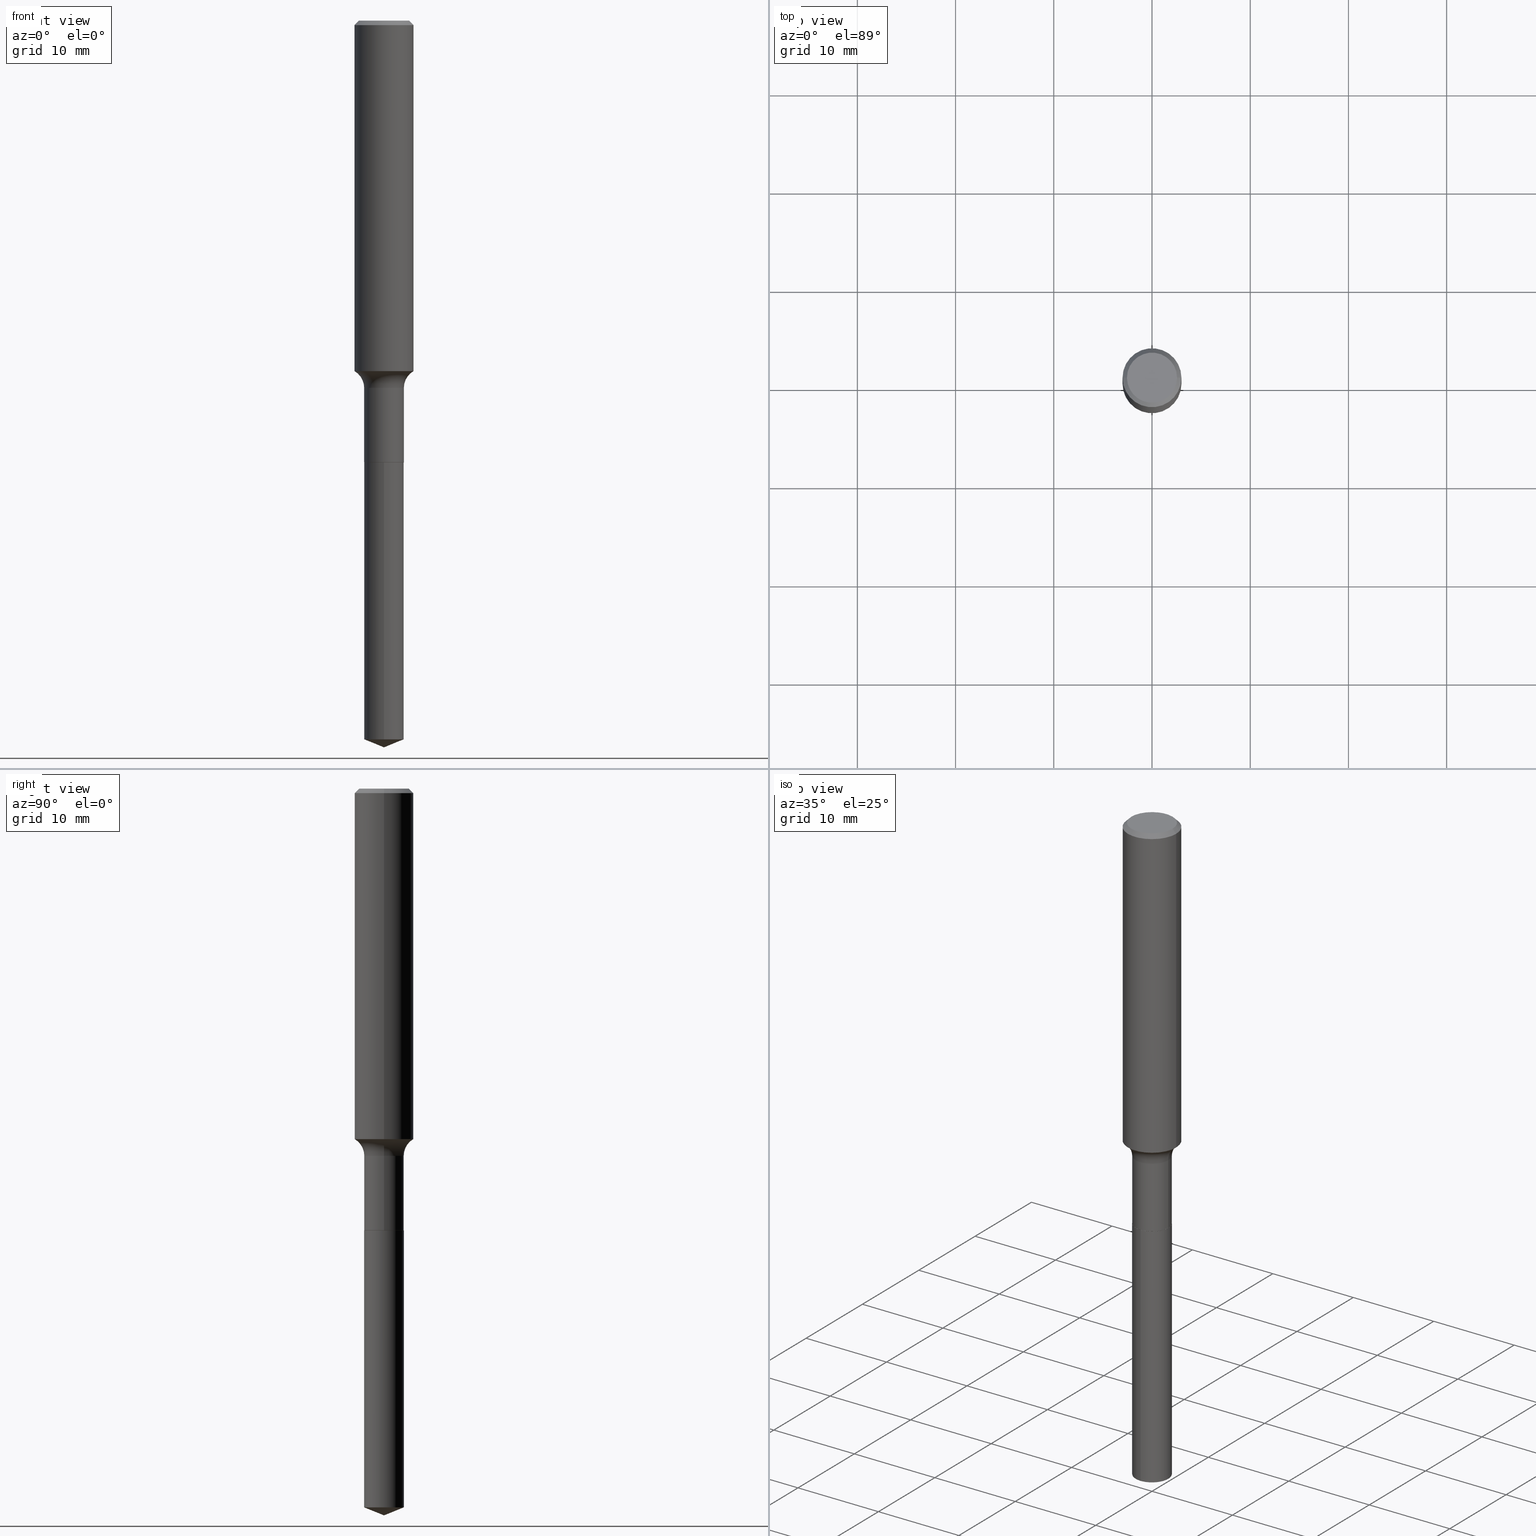
[diagram: canonical four-view strip — front | top / right | iso, engineering-drawing reading convention]
A machine part, canonical four-view strip (front | top / right | iso — engineering-drawing reading convention). The complete STEP part file that produces these views, byte-faithful:
ISO-10303-21;
HEADER;
FILE_DESCRIPTION (( 'STEP AP203' ),
    '1' );
FILE_NAME ('56840.STEP',
    '2024-04-19T14:19:43',
    ( '' ),
    ( '' ),
    'SwSTEP 2.0',
    'SolidWorks 2023',
    '' );
FILE_SCHEMA (( 'CONFIG_CONTROL_DESIGN' ));
ENDSEC;

DATA;
#1 = VERTEX_POINT ( 'NONE', #273 ) ;
#2 = VECTOR ( 'NONE', #130, 39.37007874015748143 ) ;
#3 = DIRECTION ( 'NONE',  ( -2.445468806185136597E-29, 3.491481338843145583E-15, 1.000000000000000000 ) ) ;
#4 = CC_DESIGN_PERSON_AND_ORGANIZATION_ASSIGNMENT ( #92, #423, ( #24 ) ) ;
#5 = PERSON ( 'UNSPECIFIED', 'UNSPECIFIED', 'UNSPECIFIED', ('UNSPECIFIED'), ('UNSPECIFIED'), ('UNSPECIFIED') ) ;
#6 = CALENDAR_DATE ( 2024, 19, 4 ) ;
#7 = AXIS2_PLACEMENT_3D ( 'NONE', #401, #66, #224 ) ;
#8 = AXIS2_PLACEMENT_3D ( 'NONE', #276, #135, #398 ) ;
#9 = LOCAL_TIME ( 10, 19, 43.00000000000000000, #45 ) ;
#10 = MANIFOLD_SOLID_BREP ( 'Body-Move/Copy2[2]', #251 ) ;
#11 = EDGE_CURVE ( 'NONE', #409, #300, #159, .T. ) ;
#12 = DIRECTION ( 'NONE',  ( -1.000000000000000000, 7.105427357601001859E-15, 0.000000000000000000 ) ) ;
#13 = FACE_OUTER_BOUND ( 'NONE', #17, .T. ) ;
#14 = EDGE_CURVE ( 'NONE', #282, #410, #308, .T. ) ;
#15 = AXIS2_PLACEMENT_3D ( 'NONE', #32, #470, #295 ) ;
#16 = DIRECTION ( 'NONE',  ( 1.000000000000000000, -6.982962677686265922E-15, 4.876176775795935793E-29 ) ) ;
#17 = EDGE_LOOP ( 'NONE', ( #259, #237 ) ) ;
#18 = PRODUCT_RELATED_PRODUCT_CATEGORY ( 'detail', '', ( #247 ) ) ;
#19 = CARTESIAN_POINT ( 'NONE',  ( -0.1574999999999999456, -4.020704870088835941E-15, -1.472099999999999520 ) ) ;
#20 = FACE_OUTER_BOUND ( 'NONE', #200, .T. ) ;
#21 = DIRECTION ( 'NONE',  ( -6.982962677686265922E-15, -1.000000000000000000, 6.872573568966700010E-15 ) ) ;
#22 = CARTESIAN_POINT ( 'NONE',  ( 4.331658896395732410E-29, -6.184460895492863090E-15, -1.771299999999999653 ) ) ;
#23 = VECTOR ( 'NONE', #367, 39.37007874015748143 ) ;
#24 = PRODUCT_DEFINITION_FORMATION_WITH_SPECIFIED_SOURCE ( 'ANY', '', #247, .NOT_KNOWN. ) ;
#25 = DIRECTION ( 'NONE',  ( 1.000000000000000000, -6.982962677686261977E-15, 0.000000000000000000 ) ) ;
#26 = APPROVAL_STATUS ( 'not_yet_approved' ) ;
#27 = FACE_OUTER_BOUND ( 'NONE', #489, .T. ) ;
#28 = CARTESIAN_POINT ( 'NONE',  ( 0.1180999999999999966, -8.865394841523548556E-16, -0.01771500000000011607 ) ) ;
#29 = CC_DESIGN_PERSON_AND_ORGANIZATION_ASSIGNMENT ( #72, #305, ( #247 ) ) ;
#30 = FACE_OUTER_BOUND ( 'NONE', #306, .T. ) ;
#31 = CARTESIAN_POINT ( 'NONE',  ( -0.07900000000000000078, -5.620482907068273032E-15, -1.771299999999999653 ) ) ;
#32 = CARTESIAN_POINT ( 'NONE',  ( 4.332147990156998495E-31, -6.185159191760672860E-17, -0.01771500000000011607 ) ) ;
#33 =( NAMED_UNIT ( * ) SI_UNIT ( $, .STERADIAN. ) SOLID_ANGLE_UNIT ( ) );
#34 = ORIENTED_EDGE ( 'NONE', *, *, #78, .T. ) ;
#35 = EDGE_CURVE ( 'NONE', #56, #137, #236, .T. ) ;
#36 = CIRCLE ( 'NONE', #7, 0.1181000000000001632 ) ;
#37 = DIRECTION ( 'NONE',  ( 1.000000000000000000, -6.982962677686266711E-15, 4.875668750515085695E-29 ) ) ;
#38 = ORIENTED_EDGE ( 'NONE', *, *, #323, .T. ) ;
#39 = EDGE_CURVE ( 'NONE', #377, #311, #160, .T. ) ;
#40 = DIRECTION ( 'NONE',  ( -6.982962677686265922E-15, -1.000000000000000000, 3.436286784483350005E-15 ) ) ;
#41 = ORIENTED_EDGE ( 'NONE', *, *, #441, .F. ) ;
#42 = VERTEX_POINT ( 'NONE', #488 ) ;
#43 = ORIENTED_EDGE ( 'NONE', *, *, #177, .T. ) ;
#44 = DIRECTION ( 'NONE',  ( 1.000000000000000000, -6.982962677686271444E-15, 0.000000000000000000 ) ) ;
#45 = COORDINATED_UNIVERSAL_TIME_OFFSET ( 5, 0, .BEHIND. ) ;
#46 = ADVANCED_FACE ( 'NONE', ( #30 ), #438, .T. ) ;
#47 = ADVANCED_FACE ( 'NONE', ( #339 ), #149, .F. ) ;
#48 = AXIS2_PLACEMENT_3D ( 'NONE', #326, #99, #257 ) ;
#49 = EDGE_CURVE ( 'NONE', #194, #418, #473, .T. ) ;
#50 = DIRECTION ( 'NONE',  ( 1.000000000000000000, -6.982962677686267499E-15, 4.883557194083112901E-29 ) ) ;
#51 = CARTESIAN_POINT ( 'NONE',  ( 5.648814749293502595E-16, 0.07949999999999381173, -1.771300000000000097 ) ) ;
#52 = APPROVAL ( #461, 'UNSPECIFIED' ) ;
#53 = CARTESIAN_POINT ( 'NONE',  ( -5.551455328760147649E-16, -0.07950000000000617684, -1.771299999999999430 ) ) ;
#54 = CIRCLE ( 'NONE', #124, 0.07799999999999995826 ) ;
#55 = AXIS2_PLACEMENT_3D ( 'NONE', #193, #331, #185 ) ;
#56 = VERTEX_POINT ( 'NONE', #296 ) ;
#57 = DIRECTION ( 'NONE',  ( -2.445468806185136597E-29, 3.491481338843145583E-15, 1.000000000000000000 ) ) ;
#58 = CARTESIAN_POINT ( 'NONE',  ( 0.1180999999999999966, -8.720764054544246253E-16, -0.01771500000000011607 ) ) ;
#59 = ORIENTED_EDGE ( 'NONE', *, *, #129, .F. ) ;
#60 = ORIENTED_EDGE ( 'NONE', *, *, #278, .T. ) ;
#61 = CARTESIAN_POINT ( 'NONE',  ( 0.07950000000000000122, -6.737860687699500231E-15, -1.770799999999999930 ) ) ;
#62 = DIRECTION ( 'NONE',  ( -2.445468806185136597E-29, 3.491481338843145583E-15, 1.000000000000000000 ) ) ;
#63 = EDGE_LOOP ( 'NONE', ( #468, #454, #365, #387 ) ) ;
#64 = DIRECTION ( 'NONE',  ( -6.982962677686266711E-15, -1.000000000000000000, 3.491481338843145583E-15 ) ) ;
#65 = DATE_AND_TIME ( #456, #274 ) ;
#66 = DIRECTION ( 'NONE',  ( -2.445468806185136597E-29, 3.491481338843145583E-15, 1.000000000000000000 ) ) ;
#67 = PRODUCT_DEFINITION ( 'UNKNOWN', '', #24, #279 ) ;
#68 = DIRECTION ( 'NONE',  ( 2.445355828329575530E-29, -3.491643129562608875E-15, -1.000000000000000000 ) ) ;
#69 = ORIENTED_EDGE ( 'NONE', *, *, #11, .F. ) ;
#70 = CARTESIAN_POINT ( 'NONE',  ( 0.07900000000000000078, -6.736114947030078728E-15, -1.771299999999999653 ) ) ;
#71 = CARTESIAN_POINT ( 'NONE',  ( -0.1181000000000000799, 8.391509709326788873E-16, -5.809262341591047988E-30 ) ) ;
#72 = PERSON_AND_ORGANIZATION ( #5, #349 ) ;
#73 = ADVANCED_FACE ( 'NONE', ( #13 ), #217, .F. ) ;
#74 = EDGE_LOOP ( 'NONE', ( #316, #83, #458, #176 ) ) ;
#75 = ORIENTED_EDGE ( 'NONE', *, *, #421, .T. ) ;
#76 = DIRECTION ( 'NONE',  ( 1.000000000000000000, 0.000000000000000000, 0.000000000000000000 ) ) ;
#77 = DIRECTION ( 'NONE',  ( 6.588037525764813379E-15, 0.9271838545667921982, 0.3746065934158998578 ) ) ;
#78 = EDGE_CURVE ( 'NONE', #377, #1, #262, .T. ) ;
#79 = ORIENTED_EDGE ( 'NONE', *, *, #319, .F. ) ;
#80 = EDGE_LOOP ( 'NONE', ( #464, #131, #485, #303 ) ) ;
#81 = VECTOR ( 'NONE', #318, 39.37007874015748143 ) ;
#82 = APPROVAL_DATE_TIME ( #107, #471 ) ;
#83 = ORIENTED_EDGE ( 'NONE', *, *, #490, .T. ) ;
#84 = DIRECTION ( 'NONE',  ( 2.445468806185136597E-29, -3.491481338843145583E-15, -1.000000000000000000 ) ) ;
#85 = VERTEX_POINT ( 'NONE', #96 ) ;
#86 = APPROVAL_ROLE ( '' ) ;
#87 = EDGE_CURVE ( 'NONE', #311, #300, #476, .T. ) ;
#88 = CALENDAR_DATE ( 2024, 19, 4 ) ;
#89 = AXIS2_PLACEMENT_3D ( 'NONE', #106, #188, #175 ) ;
#90 = AXIS2_PLACEMENT_3D ( 'NONE', #178, #329, #297 ) ;
#91 = ADVANCED_FACE ( 'NONE', ( #140 ), #364, .T. ) ;
#92 = PERSON_AND_ORGANIZATION ( #5, #349 ) ;
#93 = AXIS2_PLACEMENT_3D ( 'NONE', #451, #116, #170 ) ;
#94 = CONICAL_SURFACE ( 'NONE', #133, 0.1180999999999999966, 0.7853981633974453924 ) ;
#95 = EDGE_CURVE ( 'NONE', #311, #377, #370, .T. ) ;
#96 = CARTESIAN_POINT ( 'NONE',  ( -0.1181000000000001354, -4.065621063523920344E-15, -1.404782543125872252 ) ) ;
#97 = DIRECTION ( 'NONE',  ( -2.445355828329575810E-29, 3.491643129562608875E-15, 1.000000000000000000 ) ) ;
#98 = CC_DESIGN_PERSON_AND_ORGANIZATION_ASSIGNMENT ( #245, #205, ( #24 ) ) ;
#99 = DIRECTION ( 'NONE',  ( -2.445468806185136597E-29, 3.491481338843145583E-15, 1.000000000000000000 ) ) ;
#100 = ORIENTED_EDGE ( 'NONE', *, *, #164, .F. ) ;
#101 = CARTESIAN_POINT ( 'NONE',  ( -5.551455328760147649E-16, -0.07950000000000617684, -1.771299999999999430 ) ) ;
#102 = CARTESIAN_POINT ( 'NONE',  ( 7.044976608651161827E-29, -1.005871798256426244E-14, -2.880879915046105744 ) ) ;
#103 = ORIENTED_EDGE ( 'NONE', *, *, #11, .T. ) ;
#104 = CC_DESIGN_APPROVAL ( #368, ( #24 ) ) ;
#105 = DIRECTION ( 'NONE',  ( -2.445355828329575810E-29, 3.491643129562608875E-15, 1.000000000000000000 ) ) ;
#106 = CARTESIAN_POINT ( 'NONE',  ( 4.331658896395732410E-29, -6.184460895492863090E-15, -1.771299999999999653 ) ) ;
#107 = DATE_AND_TIME ( #376, #406 ) ;
#108 = DIRECTION ( 'NONE',  ( 1.000000000000000000, -6.982962677686267499E-15, 4.883557194083112901E-29 ) ) ;
#109 = CARTESIAN_POINT ( 'NONE',  ( -0.1003850000000000159, 7.319105043583384717E-16, -2.868857591683090262E-17 ) ) ;
#110 = ORIENTED_EDGE ( 'NONE', *, *, #177, .F. ) ;
#111 = DIRECTION ( 'NONE',  ( 1.000000000000000000, -6.982962677686269866E-15, 0.000000000000000000 ) ) ;
#112 = AXIS2_PLACEMENT_3D ( 'NONE', #136, #340, #50 ) ;
#113 = AXIS2_PLACEMENT_3D ( 'NONE', #482, #3, #400 ) ;
#114 = FACE_OUTER_BOUND ( 'NONE', #74, .T. ) ;
#115 = APPROVAL_STATUS ( 'not_yet_approved' ) ;
#116 = DIRECTION ( 'NONE',  ( 2.438088387897960049E-29, -3.491481338843145188E-15, -1.000000000000000000 ) ) ;
#117 = ORIENTED_EDGE ( 'NONE', *, *, #323, .F. ) ;
#118 = DIRECTION ( 'NONE',  ( 1.000000000000000000, -6.982962677686266711E-15, 4.876176775795936353E-29 ) ) ;
#119 = ORIENTED_EDGE ( 'NONE', *, *, #95, .T. ) ;
#120 = CC_DESIGN_DATE_AND_TIME_ASSIGNMENT ( #384, #166, ( #381 ) ) ;
#121 = ORIENTED_EDGE ( 'NONE', *, *, #39, .T. ) ;
#122 =( NAMED_UNIT ( * ) PLANE_ANGLE_UNIT ( ) SI_UNIT ( $, .RADIAN. ) );
#123 = ORIENTED_EDGE ( 'NONE', *, *, #490, .F. ) ;
#124 = AXIS2_PLACEMENT_3D ( 'NONE', #402, #64, #25 ) ;
#125 = EDGE_LOOP ( 'NONE', ( #189, #150, #218 ) ) ;
#126 = DIRECTION ( 'NONE',  ( 2.445468806185136597E-29, -3.491481338843145583E-15, -1.000000000000000000 ) ) ;
#127 = AXIS2_PLACEMENT_3D ( 'NONE', #399, #330, #443 ) ;
#128 = PRODUCT_DEFINITION_SHAPE ( 'NONE', 'NONE',  #67 ) ;
#129 = EDGE_CURVE ( 'NONE', #56, #42, #266, .T. ) ;
#130 = DIRECTION ( 'NONE',  ( -2.445468806185136877E-29, 3.491481338843145188E-15, 1.000000000000000000 ) ) ;
#131 = ORIENTED_EDGE ( 'NONE', *, *, #138, .T. ) ;
#132 = TOROIDAL_SURFACE ( 'NONE', #310, 0.1574999999999999456, 0.07799999999999995826 ) ;
#133 = AXIS2_PLACEMENT_3D ( 'NONE', #455, #84, #419 ) ;
#134 = CARTESIAN_POINT ( 'NONE',  ( -0.1180999999999999966, 7.628363003171412752E-16, -0.01771500000000011607 ) ) ;
#135 = DIRECTION ( 'NONE',  ( -2.445468806185136597E-29, 3.491481338843145583E-15, 1.000000000000000000 ) ) ;
#136 = CARTESIAN_POINT ( 'NONE',  ( 3.599974629585139129E-29, -5.139809678910993544E-15, -1.472099999999999520 ) ) ;
#137 = VERTEX_POINT ( 'NONE', #302 ) ;
#138 = EDGE_CURVE ( 'NONE', #137, #42, #439, .T. ) ;
#139 = DIRECTION ( 'NONE',  ( -2.445355828329575810E-29, 3.491643129562608875E-15, 1.000000000000000000 ) ) ;
#140 = FACE_OUTER_BOUND ( 'NONE', #313, .T. ) ;
#141 = VECTOR ( 'NONE', #229, 39.37007874015748143 ) ;
#142 = CARTESIAN_POINT ( 'NONE',  ( 0.07900000000000000078, -6.736114947030078728E-15, -1.771299999999999653 ) ) ;
#143 = DIRECTION ( 'NONE',  ( -6.474490251793201506E-15, -0.9271838545667896447, 0.3746065934159063526 ) ) ;
#144 = DIRECTION ( 'NONE',  ( 6.982962677686265922E-15, 1.000000000000000000, -3.491643129562608875E-15 ) ) ;
#145 = DATE_AND_TIME ( #478, #206 ) ;
#146 = CYLINDRICAL_SURFACE ( 'NONE', #415, 0.1181000000000000799 ) ;
#147 = CARTESIAN_POINT ( 'NONE',  ( 3.599974629585139129E-29, -5.139809678910993544E-15, -1.472099999999999520 ) ) ;
#148 = FACE_OUTER_BOUND ( 'NONE', #63, .T. ) ;
#149 = PLANE ( 'NONE',  #93 ) ;
#150 = ORIENTED_EDGE ( 'NONE', *, *, #129, .T. ) ;
#151 = CARTESIAN_POINT ( 'NONE',  ( 0.000000000000000000, 0.000000000000000000, 0.000000000000000000 ) ) ;
#152 = EDGE_LOOP ( 'NONE', ( #214, #378, #346, #492 ) ) ;
#153 = VECTOR ( 'NONE', #171, 39.37007874015748143 ) ;
#154 = CONICAL_SURFACE ( 'NONE', #321, 0.1180999999999999966, 0.7853981633974453924 ) ;
#155 = APPROVAL_ROLE ( '' ) ;
#156 = VERTEX_POINT ( 'NONE', #336 ) ;
#157 = DIRECTION ( 'NONE',  ( 1.000000000000000000, -6.982962677686271444E-15, 0.000000000000000000 ) ) ;
#158 = ORIENTED_EDGE ( 'NONE', *, *, #416, .F. ) ;
#159 = LINE ( 'NONE', #413, #81 ) ;
#160 = CIRCLE ( 'NONE', #356, 0.1003850000000000159 ) ;
#161 = ADVANCED_FACE ( 'NONE', ( #472 ), #132, .F. ) ;
#162 = SECURITY_CLASSIFICATION_LEVEL ( 'unclassified' ) ;
#163 = LINE ( 'NONE', #204, #2 ) ;
#164 = EDGE_CURVE ( 'NONE', #42, #137, #292, .T. ) ;
#165 = ADVANCED_FACE ( 'NONE', ( #221 ), #270, .T. ) ;
#166 = DATE_TIME_ROLE ( 'classification_date' ) ;
#167 = AXIS2_PLACEMENT_3D ( 'NONE', #338, #68, #144 ) ;
#168 = VECTOR ( 'NONE', #105, 39.37007874015748143 ) ;
#169 = ORIENTED_EDGE ( 'NONE', *, *, #353, .T. ) ;
#170 = DIRECTION ( 'NONE',  ( -1.000000000000000000, 6.982962677686265922E-15, -4.876176775795935793E-29 ) ) ;
#171 = DIRECTION ( 'NONE',  ( -2.445468806185136877E-29, 3.491481338843145188E-15, 1.000000000000000000 ) ) ;
#172 = VECTOR ( 'NONE', #230, 39.37007874015748143 ) ;
#173 = ORIENTED_EDGE ( 'NONE', *, *, #281, .F. ) ;
#174 = CONICAL_SURFACE ( 'NONE', #361, 97.44436430773087920, 1.186823891356153737 ) ;
#175 = DIRECTION ( 'NONE',  ( -6.982962677686265922E-15, -1.000000000000000000, 3.436286784483350005E-15 ) ) ;
#176 = ORIENTED_EDGE ( 'NONE', *, *, #421, .F. ) ;
#177 = EDGE_CURVE ( 'NONE', #409, #85, #36, .T. ) ;
#178 = CARTESIAN_POINT ( 'NONE',  ( -8.915032986343881601E-28, 1.272953950868953134E-13, 36.45707874015747763 ) ) ;
#179 = DIRECTION ( 'NONE',  ( -2.445468806185136597E-29, 3.491481338843145583E-15, 1.000000000000000000 ) ) ;
#180 = CC_DESIGN_DATE_AND_TIME_ASSIGNMENT ( #65, #223, ( #67 ) ) ;
#181 = MANIFOLD_SOLID_BREP ( 'Body-Move/Copy2[1]', #298 ) ;
#182 = CARTESIAN_POINT ( 'NONE',  ( 5.648814749293228466E-16, 0.07949999999999381173, -1.771300000000000097 ) ) ;
#183 = DIRECTION ( 'NONE',  ( -2.438088387897960049E-29, 3.491481338843145188E-15, 1.000000000000000000 ) ) ;
#184 = ORIENTED_EDGE ( 'NONE', *, *, #441, .T. ) ;
#185 = DIRECTION ( 'NONE',  ( 1.000000000000000000, -6.982962677686267499E-15, 4.876176775795935793E-29 ) ) ;
#186 = PERSON_AND_ORGANIZATION_ROLE ( 'creator' ) ;
#187 = ADVANCED_FACE ( 'NONE', ( #27 ), #146, .T. ) ;
#188 = DIRECTION ( 'NONE',  ( -2.445355828329575810E-29, 3.491643129562608875E-15, 1.000000000000000000 ) ) ;
#189 = ORIENTED_EDGE ( 'NONE', *, *, #35, .F. ) ;
#190 = LINE ( 'NONE', #71, #344 ) ;
#191 = CARTESIAN_POINT ( 'NONE',  ( 4.331658896395732410E-29, -6.184460895492863090E-15, -1.771299999999999653 ) ) ;
#192 = FACE_OUTER_BOUND ( 'NONE', #219, .T. ) ;
#193 = CARTESIAN_POINT ( 'NONE',  ( 0.000000000000000000, 0.000000000000000000, 0.000000000000000000 ) ) ;
#194 = VERTEX_POINT ( 'NONE', #51 ) ;
#195 = APPROVAL_PERSON_ORGANIZATION ( #445, #471, #232 ) ;
#196 = DIRECTION ( 'NONE',  ( -2.445468806185136597E-29, 3.491481338843145583E-15, 1.000000000000000000 ) ) ;
#197 = ORIENTED_EDGE ( 'NONE', *, *, #319, .T. ) ;
#198 = CC_DESIGN_PERSON_AND_ORGANIZATION_ASSIGNMENT ( #354, #317, ( #381 ) ) ;
#199 = PERSON_AND_ORGANIZATION ( #5, #349 ) ;
#200 = EDGE_LOOP ( 'NONE', ( #59, #207, #100 ) ) ;
#201 = FACE_OUTER_BOUND ( 'NONE', #383, .T. ) ;
#202 = CIRCLE ( 'NONE', #15, 0.1180999999999999966 ) ;
#203 = EDGE_CURVE ( 'NONE', #410, #156, #208, .T. ) ;
#204 = CARTESIAN_POINT ( 'NONE',  ( 0.07949999999999998734, -5.551455328760581522E-16, 3.876560536757768171E-30 ) ) ;
#205 = PERSON_AND_ORGANIZATION_ROLE ( 'design_supplier' ) ;
#206 = LOCAL_TIME ( 10, 19, 43.00000000000000000, #335 ) ;
#207 = ORIENTED_EDGE ( 'NONE', *, *, #35, .T. ) ;
#208 = LINE ( 'NONE', #359, #153 ) ;
#209 = DIRECTION ( 'NONE',  ( -6.982962677686265922E-15, -1.000000000000000000, 3.436286784483350005E-15 ) ) ;
#210 = FACE_OUTER_BOUND ( 'NONE', #327, .T. ) ;
#211 =( GEOMETRIC_REPRESENTATION_CONTEXT ( 3 ) GLOBAL_UNCERTAINTY_ASSIGNED_CONTEXT ( ( #453 ) ) GLOBAL_UNIT_ASSIGNED_CONTEXT ( ( #342, #122, #33 ) ) REPRESENTATION_CONTEXT ( 'NONE', 'WORKASPACE' ) );
#212 = ORIENTED_EDGE ( 'NONE', *, *, #291, .T. ) ;
#213 = CARTESIAN_POINT ( 'NONE',  ( 0.07949999999999995959, -5.694955211787051401E-15, -1.472099999999999520 ) ) ;
#214 = ORIENTED_EDGE ( 'NONE', *, *, #95, .F. ) ;
#215 = ADVANCED_BREP_SHAPE_REPRESENTATION ( '56840', ( #181, #10, #466 ), #211 ) ;
#216 = DIRECTION ( 'NONE',  ( -2.445468806185136597E-29, 3.491481338843145583E-15, 1.000000000000000000 ) ) ;
#217 = PLANE ( 'NONE',  #484 ) ;
#218 = ORIENTED_EDGE ( 'NONE', *, *, #138, .F. ) ;
#219 = EDGE_LOOP ( 'NONE', ( #43, #38, #158, #69 ) ) ;
#220 = PLANE ( 'NONE',  #167 ) ;
#221 = FACE_OUTER_BOUND ( 'NONE', #80, .T. ) ;
#222 = CARTESIAN_POINT ( 'NONE',  ( 0.1003850000000000159, -7.803837484803599345E-16, -2.868857591682071522E-17 ) ) ;
#223 = DATE_TIME_ROLE ( 'creation_date' ) ;
#224 = DIRECTION ( 'NONE',  ( 1.000000000000000000, -6.982962677686270655E-15, 0.000000000000000000 ) ) ;
#225 = AXIS2_PLACEMENT_3D ( 'NONE', #151, #309, #118 ) ;
#226 = CC_DESIGN_APPROVAL ( #52, ( #381 ) ) ;
#227 = ORIENTED_EDGE ( 'NONE', *, *, #39, .F. ) ;
#228 = DIRECTION ( 'NONE',  ( 1.000000000000000000, -6.982962677686271444E-15, 0.000000000000000000 ) ) ;
#229 = DIRECTION ( 'NONE',  ( -0.7071067811866199593, 7.493145998870616062E-15, 0.7071067811864750752 ) ) ;
#230 = DIRECTION ( 'NONE',  ( 0.7071067811866199593, -2.468850131083015945E-15, 0.7071067811864750752 ) ) ;
#231 = CYLINDRICAL_SURFACE ( 'NONE', #388, 0.07949999999999998734 ) ;
#232 = APPROVAL_ROLE ( '' ) ;
#233 = CARTESIAN_POINT ( 'NONE',  ( -0.07900000000000000078, -5.623132134242384233E-15, -1.771299999999999653 ) ) ;
#234 = SHAPE_DEFINITION_REPRESENTATION ( #128, #215 ) ;
#235 = CARTESIAN_POINT ( 'NONE',  ( 4.331658896395732410E-29, -6.184460895492863090E-15, -1.771299999999999653 ) ) ;
#236 = LINE ( 'NONE', #379, #404 ) ;
#237 = ORIENTED_EDGE ( 'NONE', *, *, #457, .F. ) ;
#238 = EDGE_CURVE ( 'NONE', #85, #409, #283, .T. ) ;
#239 = AXIS2_PLACEMENT_3D ( 'NONE', #431, #97, #209 ) ;
#240 = APPROVAL_DATE_TIME ( #351, #52 ) ;
#241 = APPROVAL_PERSON_ORGANIZATION ( #199, #52, #86 ) ;
#242 = COORDINATED_UNIVERSAL_TIME_OFFSET ( 5, 0, .BEHIND. ) ;
#243 = ORIENTED_EDGE ( 'NONE', *, *, #457, .T. ) ;
#244 = DIRECTION ( 'NONE',  ( -2.445468806185136597E-29, 3.491481338843145583E-15, 1.000000000000000000 ) ) ;
#245 = PERSON_AND_ORGANIZATION ( #5, #349 ) ;
#246 = ORIENTED_EDGE ( 'NONE', *, *, #14, .F. ) ;
#247 = PRODUCT ( '56840', '56840', '', ( #487 ) ) ;
#248 = DIRECTION ( 'NONE',  ( -1.000000000000000000, 6.982962677686266711E-15, 0.000000000000000000 ) ) ;
#249 = CONICAL_SURFACE ( 'NONE', #8, 0.07900000000000000078, 0.7853981633975507526 ) ;
#250 = EDGE_CURVE ( 'NONE', #42, #418, #392, .T. ) ;
#251 = CLOSED_SHELL ( 'NONE', ( #396, #434, #288, #254, #334, #355, #161, #187, #460, #47, #73, #46 ) ) ;
#252 = AXIS2_PLACEMENT_3D ( 'NONE', #235, #382, #40 ) ;
#253 = ORIENTED_EDGE ( 'NONE', *, *, #49, .T. ) ;
#254 = ADVANCED_FACE ( 'NONE', ( #210 ), #289, .F. ) ;
#255 = DIRECTION ( 'NONE',  ( 1.000000000000000000, -6.982962677686266711E-15, 4.876176775795936353E-29 ) ) ;
#256 = VERTEX_POINT ( 'NONE', #213 ) ;
#257 = DIRECTION ( 'NONE',  ( 1.000000000000000000, -6.982962677686270655E-15, 0.000000000000000000 ) ) ;
#258 = EDGE_LOOP ( 'NONE', ( #184, #253 ) ) ;
#259 = ORIENTED_EDGE ( 'NONE', *, *, #353, .F. ) ;
#260 = CARTESIAN_POINT ( 'NONE',  ( 3.599974629585139129E-29, -5.139809678910993544E-15, -1.472099999999999520 ) ) ;
#261 = EDGE_CURVE ( 'NONE', #85, #156, #320, .T. ) ;
#262 = LINE ( 'NONE', #134, #424 ) ;
#263 = VECTOR ( 'NONE', #143, 39.37007874015748143 ) ;
#264 = CIRCLE ( 'NONE', #252, 0.07950000000000000122 ) ;
#265 = CARTESIAN_POINT ( 'NONE',  ( 0.000000000000000000, 0.000000000000000000, 0.000000000000000000 ) ) ;
#266 = LINE ( 'NONE', #333, #263 ) ;
#267 = APPLICATION_CONTEXT ( 'configuration controlled 3d designs of mechanical parts and assemblies' ) ;
#268 = DIRECTION ( 'NONE',  ( -2.445468806185136877E-29, 3.491481338843145188E-15, 1.000000000000000000 ) ) ;
#269 = APPLICATION_PROTOCOL_DEFINITION ( 'international standard', 'config_control_design', 1994, #337 ) ;
#270 = CYLINDRICAL_SURFACE ( 'NONE', #89, 0.07950000000000000122 ) ;
#271 = CARTESIAN_POINT ( 'NONE',  ( -8.915032986343881601E-28, 1.272953950868953134E-13, 36.45707874015747763 ) ) ;
#272 = APPROVAL_DATE_TIME ( #145, #368 ) ;
#273 = CARTESIAN_POINT ( 'NONE',  ( -0.1180999999999999966, -1.644160842254423384E-15, -0.01771500000000011607 ) ) ;
#274 = LOCAL_TIME ( 10, 19, 43.00000000000000000, #242 ) ;
#275 = CC_DESIGN_PERSON_AND_ORGANIZATION_ASSIGNMENT ( #483, #186, ( #67 ) ) ;
#276 = CARTESIAN_POINT ( 'NONE',  ( 4.331658896395732410E-29, -6.184460895492863090E-15, -1.771299999999999653 ) ) ;
#277 = ORIENTED_EDGE ( 'NONE', *, *, #87, .F. ) ;
#278 = EDGE_CURVE ( 'NONE', #256, #156, #360, .T. ) ;
#279 = DESIGN_CONTEXT ( 'detailed design', #267, 'design' ) ;
#280 = EDGE_LOOP ( 'NONE', ( #169, #391, #347, #173 ) ) ;
#281 = EDGE_CURVE ( 'NONE', #389, #414, #374, .T. ) ;
#282 = VERTEX_POINT ( 'NONE', #31 ) ;
#283 = CIRCLE ( 'NONE', #48, 0.1181000000000001632 ) ;
#284 = CC_DESIGN_SECURITY_CLASSIFICATION ( #381, ( #24 ) ) ;
#285 = COORDINATED_UNIVERSAL_TIME_OFFSET ( 5, 0, .BEHIND. ) ;
#286 = ORIENTED_EDGE ( 'NONE', *, *, #238, .T. ) ;
#287 = ORIENTED_EDGE ( 'NONE', *, *, #238, .F. ) ;
#288 = ADVANCED_FACE ( 'NONE', ( #192 ), #480, .T. ) ;
#289 = TOROIDAL_SURFACE ( 'NONE', #112, 0.1574999999999999456, 0.07799999999999995826 ) ;
#290 = APPROVAL_PERSON_ORGANIZATION ( #369, #368, #155 ) ;
#291 = EDGE_CURVE ( 'NONE', #1, #300, #450, .T. ) ;
#292 = CIRCLE ( 'NONE', #127, 0.07950000000000000122 ) ;
#293 = AXIS2_PLACEMENT_3D ( 'NONE', #446, #428, #352 ) ;
#294 = CARTESIAN_POINT ( 'NONE',  ( 7.015701749847187307E-46, -1.001656274515824970E-31, -2.868857591682589212E-17 ) ) ;
#295 = DIRECTION ( 'NONE',  ( 1.000000000000000000, -6.982962677686266711E-15, 0.000000000000000000 ) ) ;
#296 = CARTESIAN_POINT ( 'NONE',  ( 7.123321527924054251E-29, -1.017115643641587915E-14, -2.912999999999999812 ) ) ;
#297 = DIRECTION ( 'NONE',  ( -6.982962677686265922E-15, -1.000000000000000000, 3.498761904101739600E-15 ) ) ;
#298 = CLOSED_SHELL ( 'NONE', ( #91, #430, #341, #165, #324 ) ) ;
#299 = DIRECTION ( 'NONE',  ( -2.445468806185136597E-29, 3.491481338843145583E-15, 1.000000000000000000 ) ) ;
#300 = VERTEX_POINT ( 'NONE', #28 ) ;
#301 = DIRECTION ( 'NONE',  ( -2.445468806185136597E-29, 3.491481338843145583E-15, 1.000000000000000000 ) ) ;
#302 = CARTESIAN_POINT ( 'NONE',  ( 5.648814749293498651E-16, 0.07949999999998992595, -2.880879915046106188 ) ) ;
#303 = ORIENTED_EDGE ( 'NONE', *, *, #49, .F. ) ;
#304 = DIRECTION ( 'NONE',  ( 1.000000000000000000, -6.982962677686267499E-15, 4.876176775795935793E-29 ) ) ;
#305 = PERSON_AND_ORGANIZATION_ROLE ( 'design_owner' ) ;
#306 = EDGE_LOOP ( 'NONE', ( #246, #243, #314, #123 ) ) ;
#307 =( LENGTH_UNIT ( ) NAMED_UNIT ( * ) SI_UNIT ( $, .METRE. ) );
#308 = LINE ( 'NONE', #233, #141 ) ;
#309 = DIRECTION ( 'NONE',  ( -2.445468806185136597E-29, 3.491481338843145583E-15, 1.000000000000000000 ) ) ;
#310 = AXIS2_PLACEMENT_3D ( 'NONE', #467, #299, #108 ) ;
#311 = VERTEX_POINT ( 'NONE', #222 ) ;
#312 = CONICAL_SURFACE ( 'NONE', #90, 97.44436430773087920, 1.186823891356153737 ) ;
#313 = EDGE_LOOP ( 'NONE', ( #420, #385, #41, #481 ) ) ;
#314 = ORIENTED_EDGE ( 'NONE', *, *, #281, .T. ) ;
#315 = COORDINATED_UNIVERSAL_TIME_OFFSET ( 5, 0, .BEHIND. ) ;
#316 = ORIENTED_EDGE ( 'NONE', *, *, #203, .F. ) ;
#317 = PERSON_AND_ORGANIZATION_ROLE ( 'classification_officer' ) ;
#318 = DIRECTION ( 'NONE',  ( -2.445468806185136877E-29, 3.491481338843145188E-15, 1.000000000000000000 ) ) ;
#319 = EDGE_CURVE ( 'NONE', #409, #256, #54, .T. ) ;
#320 = CIRCLE ( 'NONE', #386, 0.07799999999999995826 ) ;
#321 = AXIS2_PLACEMENT_3D ( 'NONE', #350, #126, #248 ) ;
#322 = ORIENTED_EDGE ( 'NONE', *, *, #291, .F. ) ;
#323 = EDGE_CURVE ( 'NONE', #85, #1, #190, .T. ) ;
#324 = ADVANCED_FACE ( 'NONE', ( #477 ), #220, .F. ) ;
#325 = AXIS2_PLACEMENT_3D ( 'NONE', #432, #390, #479 ) ;
#326 = CARTESIAN_POINT ( 'NONE',  ( 3.435351888687746702E-29, -4.904772034456599330E-15, -1.404782543125872252 ) ) ;
#327 = EDGE_LOOP ( 'NONE', ( #287, #437, #75, #79 ) ) ;
#328 = DIRECTION ( 'NONE',  ( -2.445468806185136597E-29, 3.491481338843145583E-15, 1.000000000000000000 ) ) ;
#329 = DIRECTION ( 'NONE',  ( -2.445355828329575810E-29, 3.491643129562608875E-15, 1.000000000000000000 ) ) ;
#330 = DIRECTION ( 'NONE',  ( -2.445355828329575810E-29, 3.491643129562608875E-15, 1.000000000000000000 ) ) ;
#331 = DIRECTION ( 'NONE',  ( -2.445468806185136597E-29, 3.491481338843145583E-15, 1.000000000000000000 ) ) ;
#332 = AXIS2_PLACEMENT_3D ( 'NONE', #411, #301, #440 ) ;
#333 = CARTESIAN_POINT ( 'NONE',  ( 7.123321527924054251E-29, -1.017115643641587915E-14, -2.912999999999999812 ) ) ;
#334 = ADVANCED_FACE ( 'NONE', ( #148 ), #393, .T. ) ;
#335 = COORDINATED_UNIVERSAL_TIME_OFFSET ( 5, 0, .BEHIND. ) ;
#336 = CARTESIAN_POINT ( 'NONE',  ( -0.07949999999999995959, -5.096380941937938599E-15, -1.472099999999999520 ) ) ;
#337 = APPLICATION_CONTEXT ( 'configuration controlled 3d designs of mechanical parts and assemblies' ) ;
#338 = CARTESIAN_POINT ( 'NONE',  ( 4.331658896395732410E-29, -6.184460895492863090E-15, -1.771299999999999653 ) ) ;
#339 = FACE_OUTER_BOUND ( 'NONE', #397, .T. ) ;
#340 = DIRECTION ( 'NONE',  ( -2.445468806185136597E-29, 3.491481338843145583E-15, 1.000000000000000000 ) ) ;
#341 = ADVANCED_FACE ( 'NONE', ( #435 ), #174, .T. ) ;
#342 =( CONVERSION_BASED_UNIT ( 'INCH', #412 ) LENGTH_UNIT ( ) NAMED_UNIT ( #433 ) );
#343 = ORIENTED_EDGE ( 'NONE', *, *, #261, .F. ) ;
#344 = VECTOR ( 'NONE', #268, 39.37007874015748143 ) ;
#345 = EDGE_CURVE ( 'NONE', #137, #194, #444, .T. ) ;
#346 = ORIENTED_EDGE ( 'NONE', *, *, #416, .T. ) ;
#347 = ORIENTED_EDGE ( 'NONE', *, *, #469, .F. ) ;
#348 = AXIS2_PLACEMENT_3D ( 'NONE', #294, #179, #436 ) ;
#349 = ORGANIZATION ( 'UNSPECIFIED', 'UNSPECIFIED', '' ) ;
#350 = CARTESIAN_POINT ( 'NONE',  ( 4.332147990156998495E-31, -6.185159191760672860E-17, -0.01771500000000011607 ) ) ;
#351 = DATE_AND_TIME ( #88, #9 ) ;
#352 = DIRECTION ( 'NONE',  ( 1.000000000000000000, -6.982962677686265922E-15, 0.000000000000000000 ) ) ;
#353 = EDGE_CURVE ( 'NONE', #389, #282, #357, .T. ) ;
#354 = PERSON_AND_ORGANIZATION ( #5, #349 ) ;
#355 = ADVANCED_FACE ( 'NONE', ( #114 ), #231, .T. ) ;
#356 = AXIS2_PLACEMENT_3D ( 'NONE', #459, #405, #37 ) ;
#357 = CIRCLE ( 'NONE', #452, 0.07900000000000000078 ) ;
#358 = DIRECTION ( 'NONE',  ( 7.105427357601001859E-15, 1.000000000000000000, -3.491481338843145583E-15 ) ) ;
#359 = CARTESIAN_POINT ( 'NONE',  ( -0.07949999999999998734, 5.648814749292795578E-16, -3.910553396752649427E-30 ) ) ;
#360 = CIRCLE ( 'NONE', #426, 0.07949999999999995959 ) ;
#361 = AXIS2_PLACEMENT_3D ( 'NONE', #271, #139, #447 ) ;
#362 = DIRECTION ( 'NONE',  ( -2.445355828329575810E-29, 3.491643129562608875E-15, 1.000000000000000000 ) ) ;
#363 = DIRECTION ( 'NONE',  ( 1.000000000000000000, -6.982962677686269866E-15, 0.000000000000000000 ) ) ;
#364 = CYLINDRICAL_SURFACE ( 'NONE', #325, 0.07950000000000000122 ) ;
#365 = ORIENTED_EDGE ( 'NONE', *, *, #278, .F. ) ;
#366 = FACE_OUTER_BOUND ( 'NONE', #152, .T. ) ;
#367 = DIRECTION ( 'NONE',  ( 0.7071067811865454633, -7.319954787623248157E-15, -0.7071067811865495711 ) ) ;
#368 = APPROVAL ( #26, 'UNSPECIFIED' ) ;
#369 = PERSON_AND_ORGANIZATION ( #5, #349 ) ;
#370 = CIRCLE ( 'NONE', #348, 0.1003850000000000159 ) ;
#371 = DIRECTION ( 'NONE',  ( -2.445355828329575810E-29, 3.491643129562608875E-15, 1.000000000000000000 ) ) ;
#372 = CC_DESIGN_APPROVAL ( #471, ( #67 ) ) ;
#373 = FACE_OUTER_BOUND ( 'NONE', #280, .T. ) ;
#374 = LINE ( 'NONE', #70, #172 ) ;
#375 = CARTESIAN_POINT ( 'NONE',  ( -0.07950000000000000122, -5.096380941937938599E-15, -1.770799999999999930 ) ) ;
#376 = CALENDAR_DATE ( 2024, 19, 4 ) ;
#377 = VERTEX_POINT ( 'NONE', #109 ) ;
#378 = ORIENTED_EDGE ( 'NONE', *, *, #87, .T. ) ;
#379 = CARTESIAN_POINT ( 'NONE',  ( 7.123725272866752097E-29, -1.017058327661311079E-14, -2.912999999999999812 ) ) ;
#380 = AXIS2_PLACEMENT_3D ( 'NONE', #191, #196, #157 ) ;
#381 = SECURITY_CLASSIFICATION ( '', '', #162 ) ;
#382 = DIRECTION ( 'NONE',  ( -2.445355828329575810E-29, 3.491643129562608875E-15, 1.000000000000000000 ) ) ;
#383 = EDGE_LOOP ( 'NONE', ( #277, #227, #34, #212 ) ) ;
#384 = DATE_AND_TIME ( #6, #442 ) ;
#385 = ORIENTED_EDGE ( 'NONE', *, *, #345, .T. ) ;
#386 = AXIS2_PLACEMENT_3D ( 'NONE', #19, #358, #12 ) ;
#387 = ORIENTED_EDGE ( 'NONE', *, *, #486, .F. ) ;
#388 = AXIS2_PLACEMENT_3D ( 'NONE', #265, #57, #304 ) ;
#389 = VERTEX_POINT ( 'NONE', #142 ) ;
#390 = DIRECTION ( 'NONE',  ( -2.445355828329575810E-29, 3.491643129562608875E-15, 1.000000000000000000 ) ) ;
#391 = ORIENTED_EDGE ( 'NONE', *, *, #14, .T. ) ;
#392 = LINE ( 'NONE', #53, #465 ) ;
#393 = CYLINDRICAL_SURFACE ( 'NONE', #55, 0.07949999999999998734 ) ;
#394 = CIRCLE ( 'NONE', #113, 0.07950000000000000122 ) ;
#395 = DIRECTION ( 'NONE',  ( -0.7071067811865454633, 2.468850131082235367E-15, -0.7071067811865495711 ) ) ;
#396 = ADVANCED_FACE ( 'NONE', ( #373 ), #249, .T. ) ;
#397 = EDGE_LOOP ( 'NONE', ( #121, #119 ) ) ;
#398 = DIRECTION ( 'NONE',  ( 1.000000000000000000, -6.982962677686271444E-15, 0.000000000000000000 ) ) ;
#399 = CARTESIAN_POINT ( 'NONE',  ( 7.044976608651161827E-29, -1.005871798256426244E-14, -2.880879915046105744 ) ) ;
#400 = DIRECTION ( 'NONE',  ( 1.000000000000000000, -6.982962677686265922E-15, 0.000000000000000000 ) ) ;
#401 = CARTESIAN_POINT ( 'NONE',  ( 3.435351888687746702E-29, -4.904772034456599330E-15, -1.404782543125872252 ) ) ;
#402 = CARTESIAN_POINT ( 'NONE',  ( 0.1574999999999999456, -6.239626300646579447E-15, -1.472099999999999520 ) ) ;
#403 = APPLICATION_PROTOCOL_DEFINITION ( 'international standard', 'config_control_design', 1994, #267 ) ;
#404 = VECTOR ( 'NONE', #77, 39.37007874015748854 ) ;
#405 = DIRECTION ( 'NONE',  ( -2.445468806185136597E-29, 3.491481338843145583E-15, 1.000000000000000000 ) ) ;
#406 = LOCAL_TIME ( 10, 19, 43.00000000000000000, #315 ) ;
#407 = CARTESIAN_POINT ( 'NONE',  ( 0.1181000000000001354, -5.729459926691349170E-15, -1.404782543125872252 ) ) ;
#408 = DIRECTION ( 'NONE',  ( 0.000000000000000000, 0.000000000000000000, 1.000000000000000000 ) ) ;
#409 = VERTEX_POINT ( 'NONE', #407 ) ;
#410 = VERTEX_POINT ( 'NONE', #375 ) ;
#411 = CARTESIAN_POINT ( 'NONE',  ( 4.332147990156998495E-31, -6.185159191760672860E-17, -0.01771500000000011607 ) ) ;
#412 = LENGTH_MEASURE_WITH_UNIT ( LENGTH_MEASURE( 0.02539999999999999897 ), #307 );
#413 = CARTESIAN_POINT ( 'NONE',  ( 0.1181000000000000799, -8.246878922347486570E-16, 5.758764772215004644E-30 ) ) ;
#414 = VERTEX_POINT ( 'NONE', #61 ) ;
#415 = AXIS2_PLACEMENT_3D ( 'NONE', #429, #62, #255 ) ;
#416 = EDGE_CURVE ( 'NONE', #300, #1, #202, .T. ) ;
#417 = AXIS2_PLACEMENT_3D ( 'NONE', #422, #244, #44 ) ;
#418 = VERTEX_POINT ( 'NONE', #101 ) ;
#419 = DIRECTION ( 'NONE',  ( -1.000000000000000000, 6.982962677686266711E-15, 0.000000000000000000 ) ) ;
#420 = ORIENTED_EDGE ( 'NONE', *, *, #164, .T. ) ;
#421 = EDGE_CURVE ( 'NONE', #156, #256, #463, .T. ) ;
#422 = CARTESIAN_POINT ( 'NONE',  ( 4.331658896395732410E-29, -6.184460895492863090E-15, -1.771299999999999653 ) ) ;
#423 = PERSON_AND_ORGANIZATION_ROLE ( 'creator' ) ;
#424 = VECTOR ( 'NONE', #395, 39.37007874015748143 ) ;
#425 = CIRCLE ( 'NONE', #293, 0.07950000000000000122 ) ;
#426 = AXIS2_PLACEMENT_3D ( 'NONE', #147, #328, #111 ) ;
#427 = AXIS2_PLACEMENT_3D ( 'NONE', #260, #216, #363 ) ;
#428 = DIRECTION ( 'NONE',  ( -2.445468806185136597E-29, 3.491481338843145583E-15, 1.000000000000000000 ) ) ;
#429 = CARTESIAN_POINT ( 'NONE',  ( 0.000000000000000000, 0.000000000000000000, 0.000000000000000000 ) ) ;
#430 = ADVANCED_FACE ( 'NONE', ( #20 ), #312, .T. ) ;
#431 = CARTESIAN_POINT ( 'NONE',  ( 4.331658896395732410E-29, -6.184460895492863090E-15, -1.771299999999999653 ) ) ;
#432 = CARTESIAN_POINT ( 'NONE',  ( 4.331658896395732410E-29, -6.184460895492863090E-15, -1.771299999999999653 ) ) ;
#433 = DIMENSIONAL_EXPONENTS ( 1.000000000000000000, 0.000000000000000000, 0.000000000000000000, 0.000000000000000000, 0.000000000000000000, 0.000000000000000000, 0.000000000000000000 ) ;
#434 = ADVANCED_FACE ( 'NONE', ( #366 ), #94, .T. ) ;
#435 = FACE_OUTER_BOUND ( 'NONE', #125, .T. ) ;
#436 = DIRECTION ( 'NONE',  ( 1.000000000000000000, -6.982962677686266711E-15, 4.875668750515085695E-29 ) ) ;
#437 = ORIENTED_EDGE ( 'NONE', *, *, #261, .T. ) ;
#438 = CONICAL_SURFACE ( 'NONE', #380, 0.07900000000000000078, 0.7853981633975507526 ) ;
#439 = CIRCLE ( 'NONE', #462, 0.07950000000000000122 ) ;
#440 = DIRECTION ( 'NONE',  ( 1.000000000000000000, -6.982962677686266711E-15, 0.000000000000000000 ) ) ;
#441 = EDGE_CURVE ( 'NONE', #418, #194, #264, .T. ) ;
#442 = LOCAL_TIME ( 10, 19, 43.00000000000000000, #285 ) ;
#443 = DIRECTION ( 'NONE',  ( -6.982962677686265922E-15, -1.000000000000000000, 6.872573568966700010E-15 ) ) ;
#444 = LINE ( 'NONE', #182, #168 ) ;
#445 = PERSON_AND_ORGANIZATION ( #5, #349 ) ;
#446 = CARTESIAN_POINT ( 'NONE',  ( 4.330436161992639608E-29, -6.182715154823442375E-15, -1.770799999999999930 ) ) ;
#447 = DIRECTION ( 'NONE',  ( -6.982962677686265922E-15, -1.000000000000000000, 3.498761904101739600E-15 ) ) ;
#448 = EDGE_LOOP ( 'NONE', ( #343, #110, #197, #60 ) ) ;
#449 = CARTESIAN_POINT ( 'NONE',  ( 4.331658896395732410E-29, -6.184460895492863090E-15, -1.771299999999999653 ) ) ;
#450 = CIRCLE ( 'NONE', #332, 0.1180999999999999966 ) ;
#451 = CARTESIAN_POINT ( 'NONE',  ( 3.507850874923593654E-46, -5.008281372579124849E-32, -1.434428795841294606E-17 ) ) ;
#452 = AXIS2_PLACEMENT_3D ( 'NONE', #449, #475, #228 ) ;
#453 = UNCERTAINTY_MEASURE_WITH_UNIT (LENGTH_MEASURE( 1.000000000000000082E-05 ), #342, 'distance_accuracy_value', 'NONE');
#454 = ORIENTED_EDGE ( 'NONE', *, *, #203, .T. ) ;
#455 = CARTESIAN_POINT ( 'NONE',  ( 4.332147990156998495E-31, -6.185159191760672860E-17, -0.01771500000000011607 ) ) ;
#456 = CALENDAR_DATE ( 2024, 19, 4 ) ;
#457 = EDGE_CURVE ( 'NONE', #282, #389, #474, .T. ) ;
#458 = ORIENTED_EDGE ( 'NONE', *, *, #486, .T. ) ;
#459 = CARTESIAN_POINT ( 'NONE',  ( 7.015701749847187307E-46, -1.001656274515824970E-31, -2.868857591682589212E-17 ) ) ;
#460 = ADVANCED_FACE ( 'NONE', ( #201 ), #154, .T. ) ;
#461 = APPROVAL_STATUS ( 'not_yet_approved' ) ;
#462 = AXIS2_PLACEMENT_3D ( 'NONE', #102, #371, #21 ) ;
#463 = CIRCLE ( 'NONE', #427, 0.07949999999999995959 ) ;
#464 = ORIENTED_EDGE ( 'NONE', *, *, #345, .F. ) ;
#465 = VECTOR ( 'NONE', #362, 39.37007874015748143 ) ;
#466 = AXIS2_PLACEMENT_3D ( 'NONE', #491, #408, #76 ) ;
#467 = CARTESIAN_POINT ( 'NONE',  ( 3.599974629585139129E-29, -5.139809678910993544E-15, -1.472099999999999520 ) ) ;
#468 = ORIENTED_EDGE ( 'NONE', *, *, #469, .T. ) ;
#469 = EDGE_CURVE ( 'NONE', #414, #410, #425, .T. ) ;
#470 = DIRECTION ( 'NONE',  ( -2.445468806185136597E-29, 3.491481338843145583E-15, 1.000000000000000000 ) ) ;
#471 = APPROVAL ( #115, 'UNSPECIFIED' ) ;
#472 = FACE_OUTER_BOUND ( 'NONE', #448, .T. ) ;
#473 = CIRCLE ( 'NONE', #239, 0.07950000000000000122 ) ;
#474 = CIRCLE ( 'NONE', #417, 0.07900000000000000078 ) ;
#475 = DIRECTION ( 'NONE',  ( -2.445468806185136597E-29, 3.491481338843145583E-15, 1.000000000000000000 ) ) ;
#476 = LINE ( 'NONE', #58, #23 ) ;
#477 = FACE_OUTER_BOUND ( 'NONE', #258, .T. ) ;
#478 = CALENDAR_DATE ( 2024, 19, 4 ) ;
#479 = DIRECTION ( 'NONE',  ( -6.982962677686265922E-15, -1.000000000000000000, 3.436286784483350005E-15 ) ) ;
#480 = CYLINDRICAL_SURFACE ( 'NONE', #225, 0.1181000000000000799 ) ;
#481 = ORIENTED_EDGE ( 'NONE', *, *, #250, .F. ) ;
#482 = CARTESIAN_POINT ( 'NONE',  ( 4.330436161992639608E-29, -6.182715154823442375E-15, -1.770799999999999930 ) ) ;
#483 = PERSON_AND_ORGANIZATION ( #5, #349 ) ;
#484 = AXIS2_PLACEMENT_3D ( 'NONE', #22, #183, #16 ) ;
#485 = ORIENTED_EDGE ( 'NONE', *, *, #250, .T. ) ;
#486 = EDGE_CURVE ( 'NONE', #414, #256, #163, .T. ) ;
#487 = MECHANICAL_CONTEXT ( 'NONE', #337, 'mechanical' ) ;
#488 = CARTESIAN_POINT ( 'NONE',  ( -5.551455328759876478E-16, -0.07950000000001004874, -2.880879915046105744 ) ) ;
#489 = EDGE_LOOP ( 'NONE', ( #117, #286, #103, #322 ) ) ;
#490 = EDGE_CURVE ( 'NONE', #410, #414, #394, .T. ) ;
#491 = CARTESIAN_POINT ( 'NONE',  ( 0.000000000000000000, 0.000000000000000000, 0.000000000000000000 ) ) ;
#492 = ORIENTED_EDGE ( 'NONE', *, *, #78, .F. ) ;
ENDSEC;
END-ISO-10303-21;
